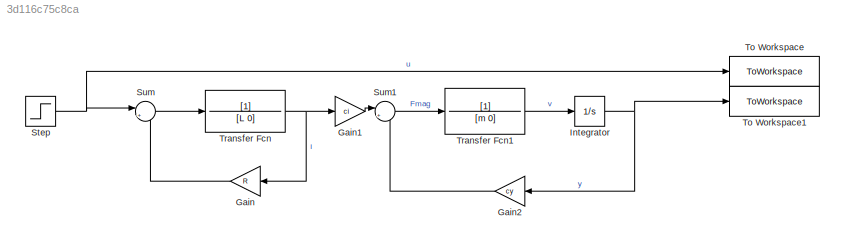
MODEL slx_3d116c75c8ca
KIND model
CONFIG AbsTol = auto
CONFIG EnableMultiTasking = off
CONFIG FixedStep = auto
CONFIG MaxStep = auto
CONFIG MinStep = auto
CONFIG RelTol = 1e-3
CONFIG SampleTimeConstraint = Unconstrained
CONFIG SolverName = VariableStepAuto
CONFIG StartTime = 0.0
CONFIG StopTime = 1
BLOCK [Gain] Gain
  Gain = R
  NameLocation = top
BLOCK [Gain] Gain1
  Gain = ci
BLOCK [Gain] Gain2
  Gain = cy
  NameLocation = top
BLOCK [Integrator] Integrator
BLOCK [Step] Step
  SampleTime = 0
  Time = 0
BLOCK [Sum] Sum
  Inputs = |+-
BLOCK [Sum] Sum1
  Inputs = |++
BLOCK [ToWorkspace] To Workspace
  FixptAsFi = on
  MaxDataPoints = inf
  SampleTime = -1
  SaveFormat = Timeseries
  VariableName = Sprung
BLOCK [ToWorkspace] To Workspace1
  FixptAsFi = on
  MaxDataPoints = inf
  SampleTime = -1
  SaveFormat = Timeseries
  VariableName = Antwort
BLOCK [TransferFcn] Transfer Fcn
  Denominator = [L 0]
BLOCK [TransferFcn] Transfer Fcn1
  Denominator = [m 0]
LINE Gain1:1 -> Sum1:1
LINE Gain2:1 -> Sum1:2
LINE Gain:1 -> Sum:2
NET Integrator:1 -> Gain2:1, To Workspace1:1
NET Step:1 -> Sum:1, To Workspace:1
LINE Sum1:1 -> Transfer Fcn1:1
LINE Sum:1 -> Transfer Fcn:1
LINE Transfer Fcn1:1 -> Integrator:1
NET Transfer Fcn:1 -> Gain1:1, Gain:1
note: NET lines group one-source signal fan-out (src -> all destinations, sorted); 1:1 wires keep LINE
